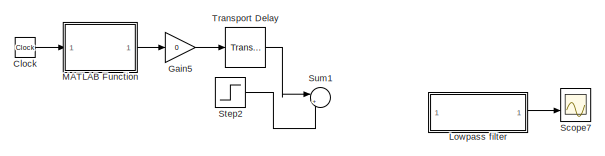
[diagram: root canvas - part 1/4, top left region]
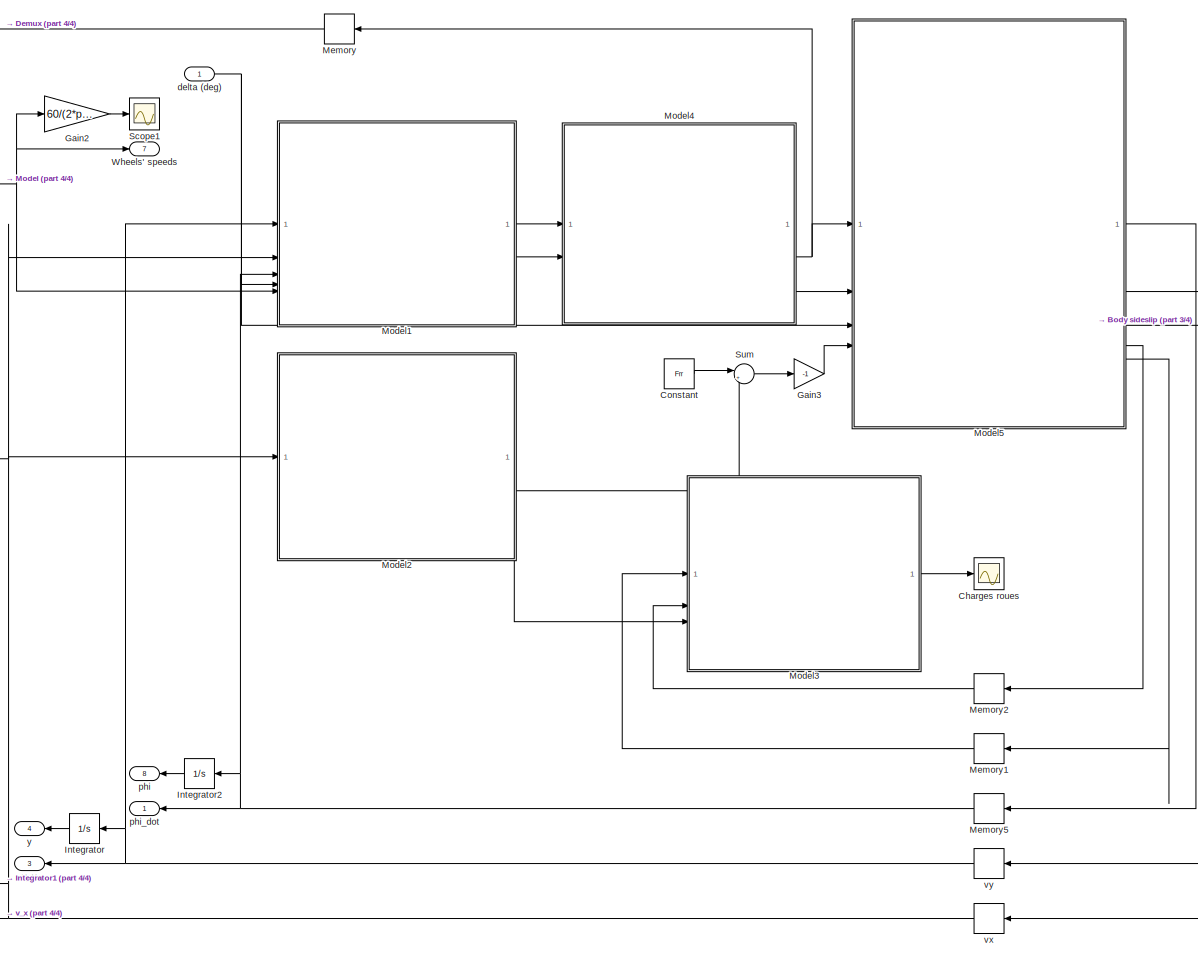
[diagram: root canvas - part 2/4, central region]
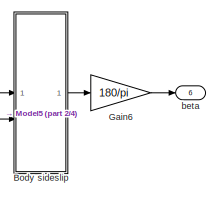
[diagram: root canvas - part 3/4, top right region]
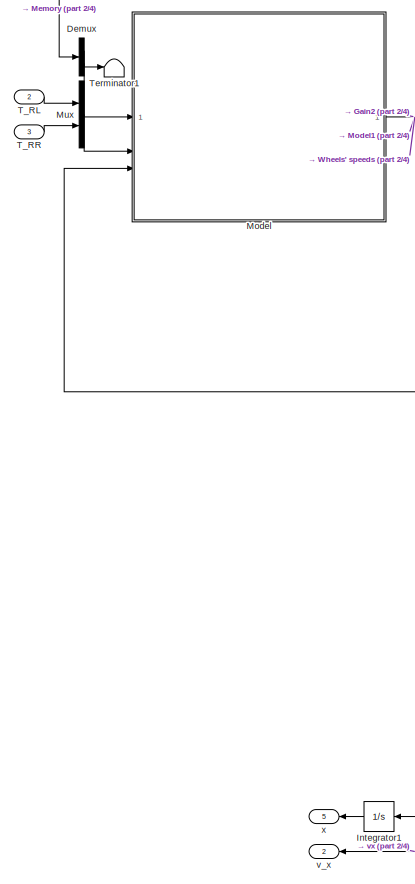
[diagram: root canvas - part 4/4, middle left region]
MODEL slx_4e54a0782e35
KIND model
CONFIG AbsTol = auto
CONFIG EnableMultiTasking = off
CONFIG FixedStep = Ts
CONFIG MaxStep = auto
CONFIG MinStep = auto
CONFIG RelTol = 1e-3
CONFIG SampleTimeConstraint = Unconstrained
CONFIG SolverName = FixedStepAuto
CONFIG StartTime = 0.0
CONFIG StopTime = 10
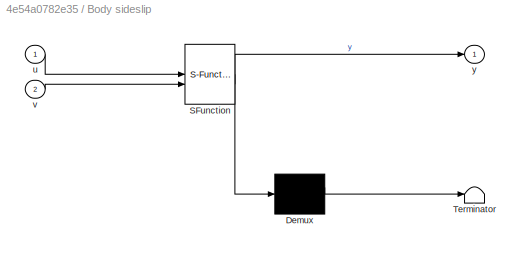
BLOCK [SubSystem] Body sideslip
  ErrorFcn = Stateflow.Translate.translate
  PermitHierarchicalResolution = ExplicitOnly
  SFBlockType = MATLAB Function
  TreatAsAtomicUnit = on
BLOCK [Demux] Body sideslip/ Demux 
  Outputs = 1
BLOCK [S-Function] Body sideslip/ SFunction 
  EnableBusSupport = on
  FunctionName = sf_sfun
  PortCounts = [2 2]
  SFcnIsStateOwnerBlock = off
  SFunctionDeploymentMode = off
  Tag = Stateflow S-Function 1
BLOCK [Terminator] Body sideslip/ Terminator 
BLOCK [Inport] Body sideslip/u
BLOCK [Inport] Body sideslip/v
  Port = 2
BLOCK [Outport] Body sideslip/y
BLOCK [Scope] Charges roues
  Floating = off
  NumInputPorts = 1
  ScopeSpecificationString = Simulink.scopes.TimeScopeBlockCfg('CurrentConfiguration', extmgr.ConfigurationSet(extmgr.Configuration('Core','General UI',true),extmgr.Configuration('Core','Source UI',true),extmgr.Configuration('Sources','WiredSimulink',true,'DataLoggingVariableName','ScopeData1'),extmgr.Configuration('Visuals','Time Domain',true,'SerializedDisplays',{struct('MinYLimReal','184.45067','MaxYLimReal','1012.72154','...<+1507ch>
BLOCK [Clock] Clock
  Commented = on
BLOCK [Constant] Constant
  Value = Frr
BLOCK [Demux] Demux
  NameLocation = top
  Outputs = 2
BLOCK [Gain] Gain2
  Gain = 60/(2*pi)
BLOCK [Gain] Gain3
  Gain = -1
BLOCK [Gain] Gain5
  Commented = on
  Gain = 0
BLOCK [Gain] Gain6
  Gain = 180/pi
BLOCK [Integrator] Integrator
  NameLocation = top
BLOCK [Integrator] Integrator1
  NameLocation = top
BLOCK [Integrator] Integrator2
  NameLocation = top
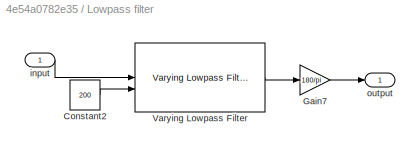
BLOCK [SubSystem] Lowpass filter
  Commented = on
BLOCK [Constant] Lowpass filter/Constant2
  Value = 200
BLOCK [Gain] Lowpass filter/Gain7
  Gain = 180/pi
BLOCK [Reference] Lowpass filter/Varying Lowpass Filter  REF=cstblocks/Linear Parameter Varying/Varying Lowpass Filter
  SourceBlock = cstblocks/Linear Parameter Varying/Varying Lowpass Filter
  SourceType = Varying Lowpass Filter
BLOCK [Inport] Lowpass filter/input
BLOCK [Outport] Lowpass filter/output
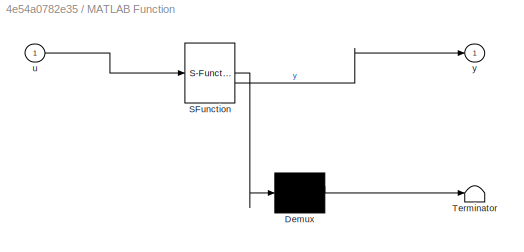
BLOCK [SubSystem] MATLAB Function
  Commented = on
  ErrorFcn = Stateflow.Translate.translate
  PermitHierarchicalResolution = ExplicitOnly
  SFBlockType = MATLAB Function
  TreatAsAtomicUnit = on
BLOCK [Demux] MATLAB Function/ Demux 
  Outputs = 1
BLOCK [S-Function] MATLAB Function/ SFunction 
  EnableBusSupport = on
  FunctionName = sf_sfun
  PortCounts = [1 2]
  SFcnIsStateOwnerBlock = off
  SFunctionDeploymentMode = off
  Tag = Stateflow S-Function 2
BLOCK [Terminator] MATLAB Function/ Terminator 
BLOCK [Inport] MATLAB Function/u
BLOCK [Outport] MATLAB Function/y
BLOCK [Memory] Memory
  InitialCondition = [0 0 0 0]
  NameLocation = top
BLOCK [Memory] Memory1
  NameLocation = top
BLOCK [Memory] Memory2
  NameLocation = top
BLOCK [Memory] Memory5
  NameLocation = top
BLOCK [ModelReference] Model
  ModelNameDialog = calcul_vitesse_roues.slx
  ModelReferenceVersion = 1.21
  PortSchema = {"entries":[{"content":{"sides":[{"content":{"connectorIds":["In2","In1","In3"]},"type":"ConnectorPlacement.EquallySpacedRectSide","uuid":"32c61a1f-6c57-499a-b866-aceaf52d28d2"},{"content":{"connectorIds":["Out1"],"side":"RIGHT"},"type":"ConnectorPlacement.EquallySpacedRectSide","uuid":"cffac577-4d60-419d-9ad2-4916db655c57"},{"content":{"side":"TOP"},"type":"ConnectorPlacement.EquallySpacedRectSid...<+234ch>
BLOCK [ModelReference] Model1
  ModelNameDialog = calcul_SA_SR.slx
  ModelReferenceVersion = 1.24
  PortSchema = {"entries":[{"content":{"sides":[{"content":{"connectorIds":["In4","In5","In2","In1","In3"]},"type":"ConnectorPlacement.EquallySpacedRectSide","uuid":"04201970-b5ae-4970-bbc5-44410850cae5"},{"content":{"connectorIds":["Out1","Out2"],"side":"RIGHT"},"type":"ConnectorPlacement.EquallySpacedRectSide","uuid":"ab4d4869-684a-4026-8884-27d4e324b480"},{"content":{"side":"TOP"},"type":"ConnectorPlacement.E...<+253ch>
BLOCK [ModelReference] Model2
  ModelNameDialog = forces_aero.slx
  ModelReferenceVersion = 1.4
  PortSchema = {"entries":[{"content":{"sides":[{"content":{"connectorIds":["In1"]},"type":"ConnectorPlacement.EquallySpacedRectSide","uuid":"36e8b1bd-3fb4-4164-87a8-b8a924d0920e"},{"content":{"connectorIds":["Out2","Out1"],"side":"RIGHT"},"type":"ConnectorPlacement.EquallySpacedRectSide","uuid":"44b00b7a-cae6-466b-a7ba-191ad477ad1a"},{"content":{"side":"TOP"},"type":"ConnectorPlacement.EquallySpacedRectSide","u...<+229ch>
BLOCK [ModelReference] Model3
  ModelNameDialog = charges_pneus.slx
  ModelReferenceVersion = 1.18
  PortSchema = {"entries":[{"content":{"sides":[{"content":{"connectorIds":["In3","In1","In2"]},"type":"ConnectorPlacement.EquallySpacedRectSide","uuid":"32c61a1f-6c57-499a-b866-aceaf52d28d2"},{"content":{"connectorIds":["Out1"],"side":"RIGHT"},"type":"ConnectorPlacement.EquallySpacedRectSide","uuid":"cffac577-4d60-419d-9ad2-4916db655c57"},{"content":{"side":"TOP"},"type":"ConnectorPlacement.EquallySpacedRectSid...<+234ch>
BLOCK [ModelReference] Model4
  ModelNameDialog = pneumatiques.slx
  ModelReferenceVersion = 1.23
  PortSchema = {"entries":[{"content":{"sides":[{"content":{"connectorIds":["In1","In2"]},"type":"ConnectorPlacement.EquallySpacedRectSide","uuid":"aa9afb45-c7cc-47c2-a353-b159ebe33fc0"},{"content":{"connectorIds":["Out2","Out1"],"side":"RIGHT"},"type":"ConnectorPlacement.EquallySpacedRectSide","uuid":"99ac261d-830b-4c4d-b54d-d5870e19fd84"},{"content":{"side":"TOP"},"type":"ConnectorPlacement.EquallySpacedRectSi...<+235ch>
BLOCK [ModelReference] Model5
  ModelNameDialog = eq_mouvement.slx
  ModelReferenceVersion = 1.16
  PortSchema = {"entries":[{"content":{"sides":[{"content":{"connectorIds":["In3","In1","In2","In4"]},"type":"ConnectorPlacement.EquallySpacedRectSide","uuid":"7adc66df-ae88-4ff9-8d9d-989933ee26de"},{"content":{"connectorIds":["Out2","Out3","Out1","Out5","Out4"],"side":"RIGHT"},"type":"ConnectorPlacement.EquallySpacedRectSide","uuid":"fc5e31fc-1ddd-4d83-91f3-0c7f32150fd7"},{"content":{"side":"TOP"},"type":"Conne...<+268ch>
BLOCK [Mux] Mux
  DisplayOption = bar
  Inputs = 2
BLOCK [Scope] Scope1
  Floating = off
  NumInputPorts = 1
  ScopeSpecificationString = Simulink.scopes.TimeScopeBlockCfg('CurrentConfiguration', extmgr.ConfigurationSet(extmgr.Configuration('Core','General UI',true),extmgr.Configuration('Core','Source UI',true),extmgr.Configuration('Sources','WiredSimulink',true,'DataLoggingVariableName','ScopeData1'),extmgr.Configuration('Visuals','Time Domain',true,'SerializedDisplays',{struct('MinYLimReal','397.79499','MaxYLimReal','607.81888','Y...<+1661ch>
BLOCK [Scope] Scope7
  Commented = on
  Floating = off
  NumInputPorts = 2
  ScopeSpecificationString = Simulink.scopes.TimeScopeBlockCfg('CurrentConfiguration', extmgr.ConfigurationSet(extmgr.Configuration('Core','General UI',true),extmgr.Configuration('Core','Source UI',true),extmgr.Configuration('Sources','WiredSimulink',true,'DataLoggingVariableName','ScopeData1'),extmgr.Configuration('Visuals','Time Domain',true,'SerializedDisplays',{struct('MinYLimReal','-1.00000','MaxYLimReal','1.00000','YLab...<+1634ch>
BLOCK [Step] Step2
  After = -10
  Before = 10
  Commented = on
  SampleTime = 0
  Time = 5
BLOCK [Sum] Sum
  Inputs = |++
BLOCK [Sum] Sum1
  Commented = on
  Inputs = |++
BLOCK [Inport] T_RL
  Port = 2
BLOCK [Inport] T_RR
  Port = 3
BLOCK [Terminator] Terminator1
  NameLocation = top
BLOCK [TransportDelay] Transport Delay
  BufferSize = 10240
  Commented = on
BLOCK [Outport] Wheels' speeds
  Port = 7
BLOCK [Outport] beta
  Port = 6
BLOCK [Inport] delta (deg)
BLOCK [Outport] phi
  NameLocation = top
  Port = 8
BLOCK [Outport] phi_dot
  NameLocation = top
BLOCK [Outport] v_x
  NameLocation = top
  Port = 2
BLOCK [Outport] v_y
  NameLocation = top
  Port = 3
BLOCK [Memory] vx
  InitialCondition = v0
  NameLocation = top
BLOCK [Memory] vy
  NameLocation = top
BLOCK [Outport] x
  NameLocation = top
  Port = 5
BLOCK [Outport] y
  NameLocation = top
  Port = 4
LINE Body sideslip:1 -> Gain6:1
LINE Clock:1 -> MATLAB Function:1
LINE Constant:1 -> Sum:1
LINE Demux:1 -> Model:2
LINE Demux:2 -> Terminator1:1
LINE Gain2:1 -> Scope1:1
LINE Gain3:1 -> Model5:4
LINE Gain5:1 -> Transport Delay:1
LINE Gain6:1 -> beta:1
LINE Integrator1:1 -> x:1
LINE Integrator2:1 -> phi:1
LINE Integrator:1 -> y:1
LINE Lowpass filter/Constant2:1 -> Lowpass filter/Varying Lowpass Filter:2
LINE Lowpass filter/Gain7:1 -> Lowpass filter/output:1
LINE Lowpass filter/Varying Lowpass Filter:1 -> Lowpass filter/Gain7:1
LINE Lowpass filter/input:1 -> Lowpass filter/Varying Lowpass Filter:1
LINE Lowpass filter:1 -> Scope7:2
LINE MATLAB Function:1 -> Gain5:1
LINE Memory1:1 -> Model3:1
LINE Memory2:1 -> Model3:2
NET Memory5:1 -> Integrator2:1, Model1:3, phi_dot:1
LINE Memory:1 -> Demux:1
LINE Model1:1 -> Model4:1
LINE Model1:2 -> Model4:2
LINE Model2:1 -> Model3:3
LINE Model2:2 -> Sum:2
LINE Model3:1 -> Charges roues:1
LINE Model4:1 -> Model5:2
NET Model4:2 -> Memory:1, Model5:1
LINE Model5:1 -> Memory5:1
NET Model5:2 -> Body sideslip:1, vx:1
NET Model5:3 -> Body sideslip:2, vy:1
LINE Model5:4 -> Memory2:1
LINE Model5:5 -> Memory1:1
NET Model:1 -> Gain2:1, Model1:5, Wheels' speeds:1
LINE Mux:1 -> Model:1
LINE Step2:1 -> Sum1:2
LINE Sum:1 -> Gain3:1
LINE T_RL:1 -> Mux:1
LINE T_RR:1 -> Mux:2
LINE Transport Delay:1 -> Sum1:1
NET delta (deg):1 -> Model1:4, Model5:3
NET vx:1 -> Integrator1:1, Model1:2, Model2:1, Model:3, v_x:1
NET vy:1 -> Integrator:1, Model1:1, v_y:1
note: NET lines group one-source signal fan-out (src -> all destinations, sorted); 1:1 wires keep LINE
CHART MATLAB Function states=1 transitions=1
  STATE_LABEL 'eML_blk_kernel()'
  STATE_LABEL 'SCRIPT:\nfunction y = fcn(u)\n   y = 1 - exp(-u/2);\nend\n\n'
CHART Body sideslip states=1 transitions=1
  STATE_LABEL 'eML_blk_kernel()'
  STATE_LABEL 'SCRIPT:\nfunction y = fcn(u,v)\n\ny = atan(v/u);\nend\n'
CHART  states=0 transitions=0
CHART  states=0 transitions=0
